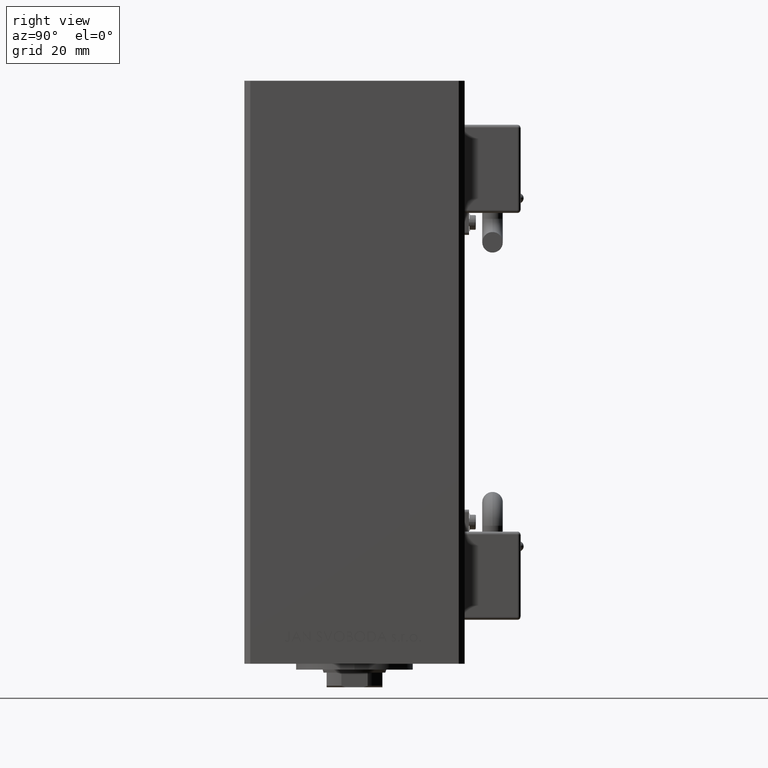
[diagram: clean part render]
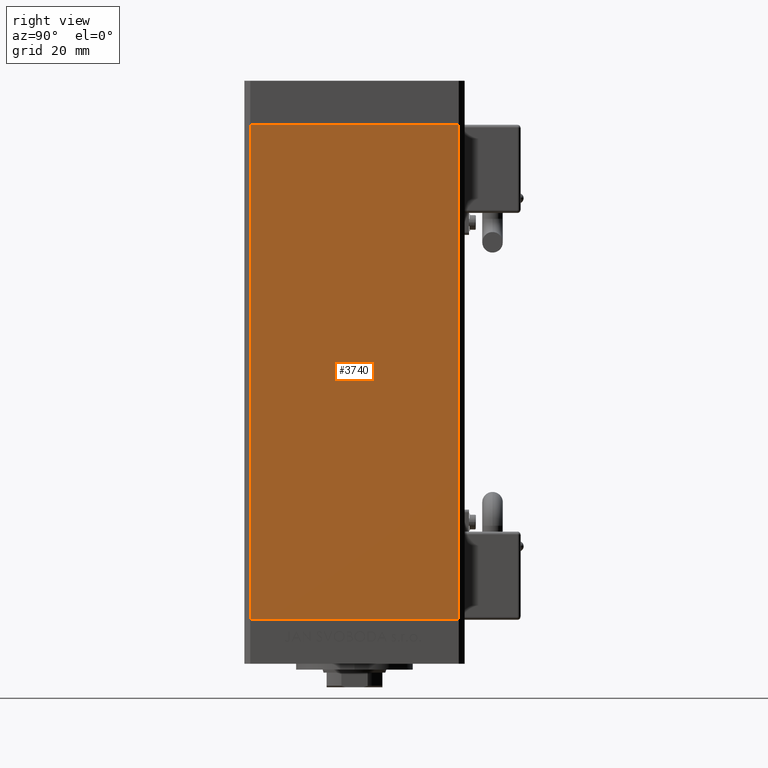
[diagram: same view with one face highlighted and labeled with its STEP entity id]
A machine part, right view. The second image highlights one B-rep face of the part: STEP entity #3740.
In plain terms, the highlighted planar face has unit normal (1, -0, 0).
Its self-contained STEP definition (entity closure, byte-faithful):
#59 = VECTOR ( 'NONE', #39585, 1000.000000000000000 ) ;
#219 = VECTOR ( 'NONE', #2259, 1000.000000000000000 ) ;
#417 = VERTEX_POINT ( 'NONE', #20209 ) ;
#2259 = DIRECTION ( 'NONE',  ( -0.000000000000000000, -0.000000000000000000, -1.000000000000000000 ) ) ;
#2525 = LINE ( 'NONE', #18800, #219 ) ;
#2551 = LINE ( 'NONE', #47589, #59 ) ;
#3033 = ORIENTED_EDGE ( 'NONE', *, *, #25180, .F. ) ;
#3740 = ADVANCED_FACE ( 'NONE', ( #38379 ), #18146, .T. ) ;
#6976 = CARTESIAN_POINT ( 'NONE',  ( 42.50000000000000711, 35.50000000000001421, 0.000000000000000000 ) ) ;
#7230 = CARTESIAN_POINT ( 'NONE',  ( 42.50000000000000711, 35.50000000000001421, 0.000000000000000000 ) ) ;
#8920 = VERTEX_POINT ( 'NONE', #19545 ) ;
#11496 = LINE ( 'NONE', #6976, #11868 ) ;
#11868 = VECTOR ( 'NONE', #20019, 1000.000000000000000 ) ;
#13480 = EDGE_CURVE ( 'NONE', #8920, #26139, #2525, .T. ) ;
#15764 = EDGE_LOOP ( 'NONE', ( #32444, #3033, #50870, #26373 ) ) ;
#18146 = PLANE ( 'NONE',  #30528 ) ;
#18383 = EDGE_CURVE ( 'NONE', #31169, #26139, #11496, .T. ) ;
#18800 = CARTESIAN_POINT ( 'NONE',  ( 42.49999999999998579, -35.50000000000000711, 168.5000000000000000 ) ) ;
#19545 = CARTESIAN_POINT ( 'NONE',  ( 42.49999999999998579, -35.50000000000000711, 168.5000000000000000 ) ) ;
#20019 = DIRECTION ( 'NONE',  ( -2.931927001650941360E-16, -1.000000000000000000, 0.000000000000000000 ) ) ;
#20209 = CARTESIAN_POINT ( 'NONE',  ( 42.50000000000000711, 35.50000000000001421, 168.5000000000000000 ) ) ;
#24321 = LINE ( 'NONE', #28061, #36689 ) ;
#24721 = EDGE_CURVE ( 'NONE', #417, #8920, #2551, .T. ) ;
#25180 = EDGE_CURVE ( 'NONE', #417, #31169, #24321, .T. ) ;
#26139 = VERTEX_POINT ( 'NONE', #42446 ) ;
#26373 = ORIENTED_EDGE ( 'NONE', *, *, #13480, .T. ) ;
#28061 = CARTESIAN_POINT ( 'NONE',  ( 42.50000000000000711, 35.50000000000001421, 168.5000000000000000 ) ) ;
#30528 = AXIS2_PLACEMENT_3D ( 'NONE', #50616, #42641, #37851 ) ;
#31169 = VERTEX_POINT ( 'NONE', #7230 ) ;
#32444 = ORIENTED_EDGE ( 'NONE', *, *, #18383, .F. ) ;
#36689 = VECTOR ( 'NONE', #37099, 1000.000000000000000 ) ;
#37099 = DIRECTION ( 'NONE',  ( -0.000000000000000000, -0.000000000000000000, -1.000000000000000000 ) ) ;
#37851 = DIRECTION ( 'NONE',  ( 2.931927001650941360E-16, 1.000000000000000000, 0.000000000000000000 ) ) ;
#38379 = FACE_OUTER_BOUND ( 'NONE', #15764, .T. ) ;
#39585 = DIRECTION ( 'NONE',  ( -2.931927001650941360E-16, -1.000000000000000000, 0.000000000000000000 ) ) ;
#42446 = CARTESIAN_POINT ( 'NONE',  ( 42.49999999999998579, -35.50000000000000711, 0.000000000000000000 ) ) ;
#42641 = DIRECTION ( 'NONE',  ( 1.000000000000000000, -2.931927001650941360E-16, 0.000000000000000000 ) ) ;
#47589 = CARTESIAN_POINT ( 'NONE',  ( 42.50000000000000711, 35.50000000000001421, 168.5000000000000000 ) ) ;
#50616 = CARTESIAN_POINT ( 'NONE',  ( 42.50000000000000711, 35.50000000000001421, 168.5000000000000000 ) ) ;
#50870 = ORIENTED_EDGE ( 'NONE', *, *, #24721, .T. ) ;